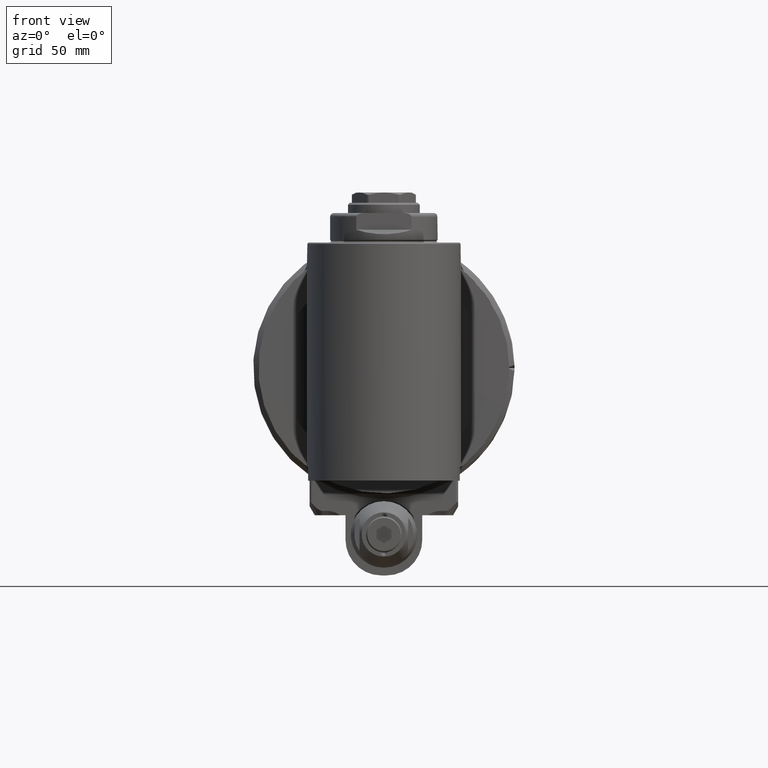
[diagram: clean part render]
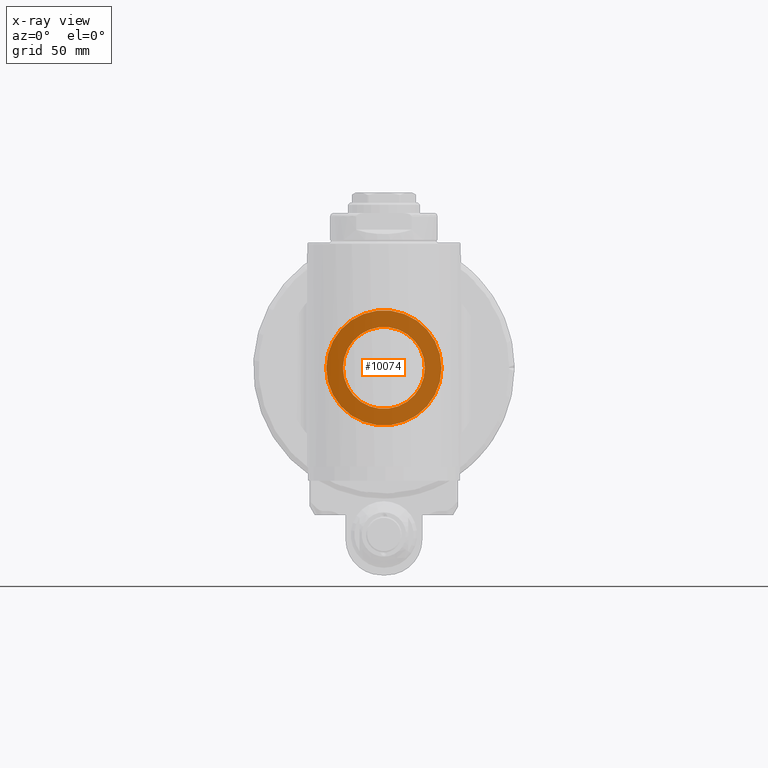
[diagram: x-ray — body ghosted, one internal face saturated and labeled with its STEP entity id]
A machine part, front view, then the same camera in x-ray: the body is ghosted and one INTERNAL B-rep face — a face not visible from any outside direction — is saturated and labeled: STEP entity #10074.
In plain terms, the highlighted planar face has unit normal (0, 1, 0).
Its self-contained STEP definition (entity closure, byte-faithful):
#433=FACE_BOUND('',#1867,.T.);
#697=PLANE('',#11163);
#1204=FACE_OUTER_BOUND('',#1866,.T.);
#1866=EDGE_LOOP('',(#8546));
#1867=EDGE_LOOP('',(#8547));
#3873=CIRCLE('',#11162,16.);
#3874=CIRCLE('',#11164,22.5);
#4700=VERTEX_POINT('',#19127);
#4701=VERTEX_POINT('',#19131);
#6033=EDGE_CURVE('',#4700,#4700,#3873,.T.);
#6034=EDGE_CURVE('',#4701,#4701,#3874,.T.);
#8546=ORIENTED_EDGE('',*,*,#6034,.T.);
#8547=ORIENTED_EDGE('',*,*,#6033,.T.);
#10074=ADVANCED_FACE('',(#1204,#433),#697,.F.);
#11162=AXIS2_PLACEMENT_3D('',#19129,#13689,#13690);
#11163=AXIS2_PLACEMENT_3D('',#19130,#13691,#13692);
#11164=AXIS2_PLACEMENT_3D('',#19132,#13693,#13694);
#13689=DIRECTION('center_axis',(0.,1.,0.));
#13690=DIRECTION('ref_axis',(1.,0.,0.));
#13691=DIRECTION('center_axis',(0.,1.,0.));
#13692=DIRECTION('ref_axis',(1.,0.,0.));
#13693=DIRECTION('center_axis',(0.,-1.,0.));
#13694=DIRECTION('ref_axis',(1.,0.,0.));
#19127=CARTESIAN_POINT('',(16.,32.,0.));
#19129=CARTESIAN_POINT('Origin',(0.,32.,0.));
#19130=CARTESIAN_POINT('Origin',(0.,32.,0.));
#19131=CARTESIAN_POINT('',(-22.5,32.,2.75545529808154E-15));
#19132=CARTESIAN_POINT('Origin',(0.,32.,0.));